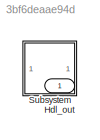
MODEL slx_3bf6deaae94d
KIND model
CONFIG AbsTol = auto
CONFIG EnableMultiTasking = off
CONFIG FixedStep = auto
CONFIG MaxStep = auto
CONFIG MinStep = auto
CONFIG RelTol = 1e-3
CONFIG SampleTimeConstraint = Unconstrained
CONFIG SolverName = VariableStepAuto
CONFIG StartTime = 0.0
CONFIG StopTime = 10.0
BLOCK [Outport] Hdl_out
  OutDataTypeStr = uint8
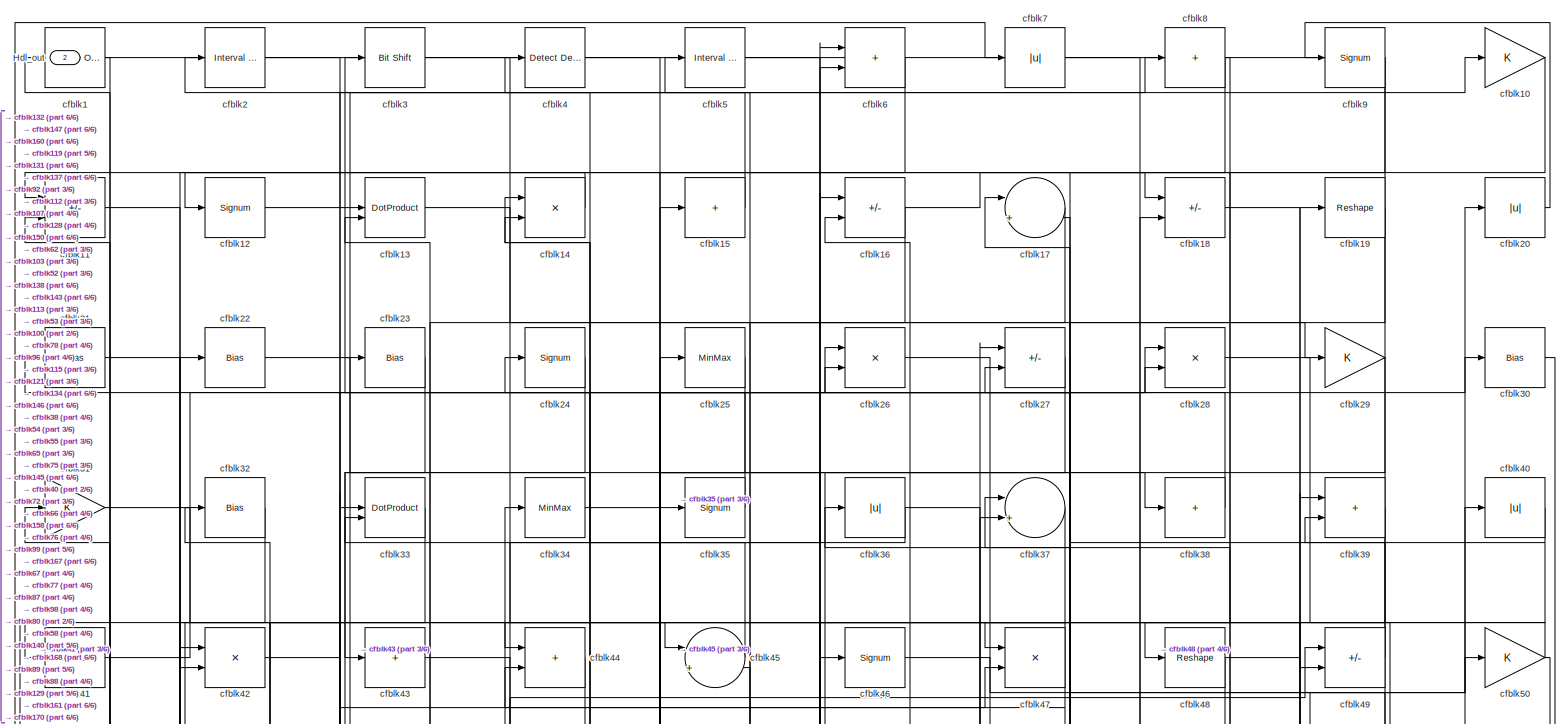
[diagram: Subsystem - part 1/6, full width, top band]
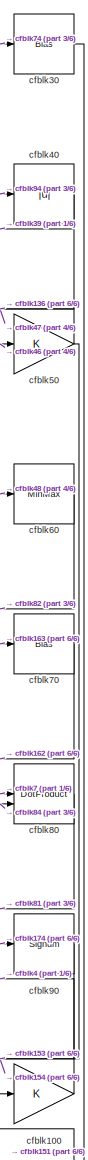
[diagram: Subsystem - part 2/6, middle right region]
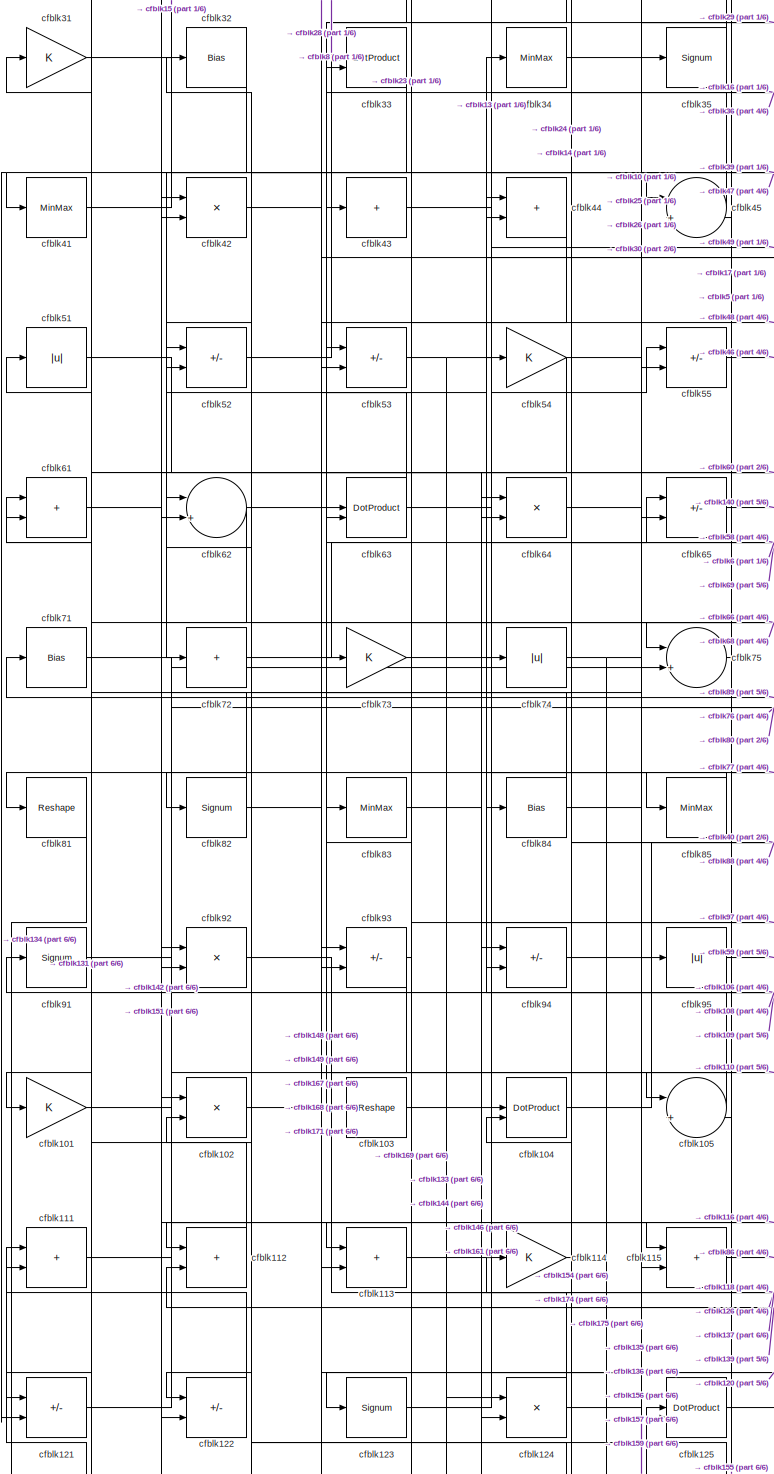
[diagram: Subsystem - part 3/6, middle left region]
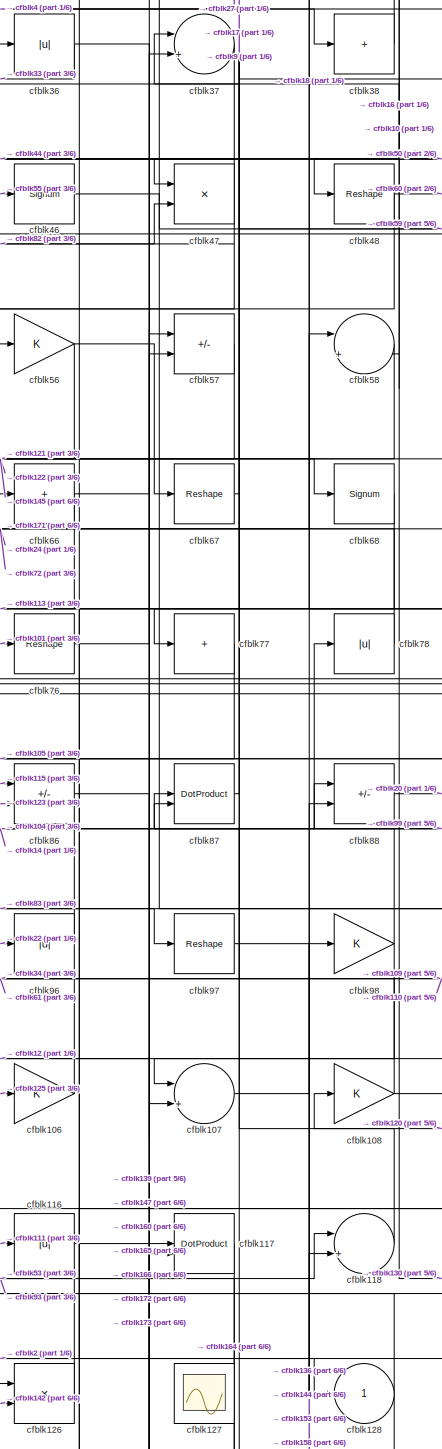
[diagram: Subsystem - part 4/6, middle right region]
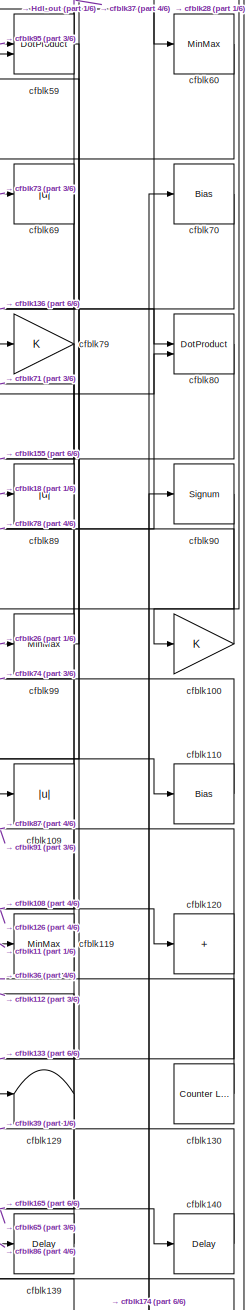
[diagram: Subsystem - part 5/6, middle right region]
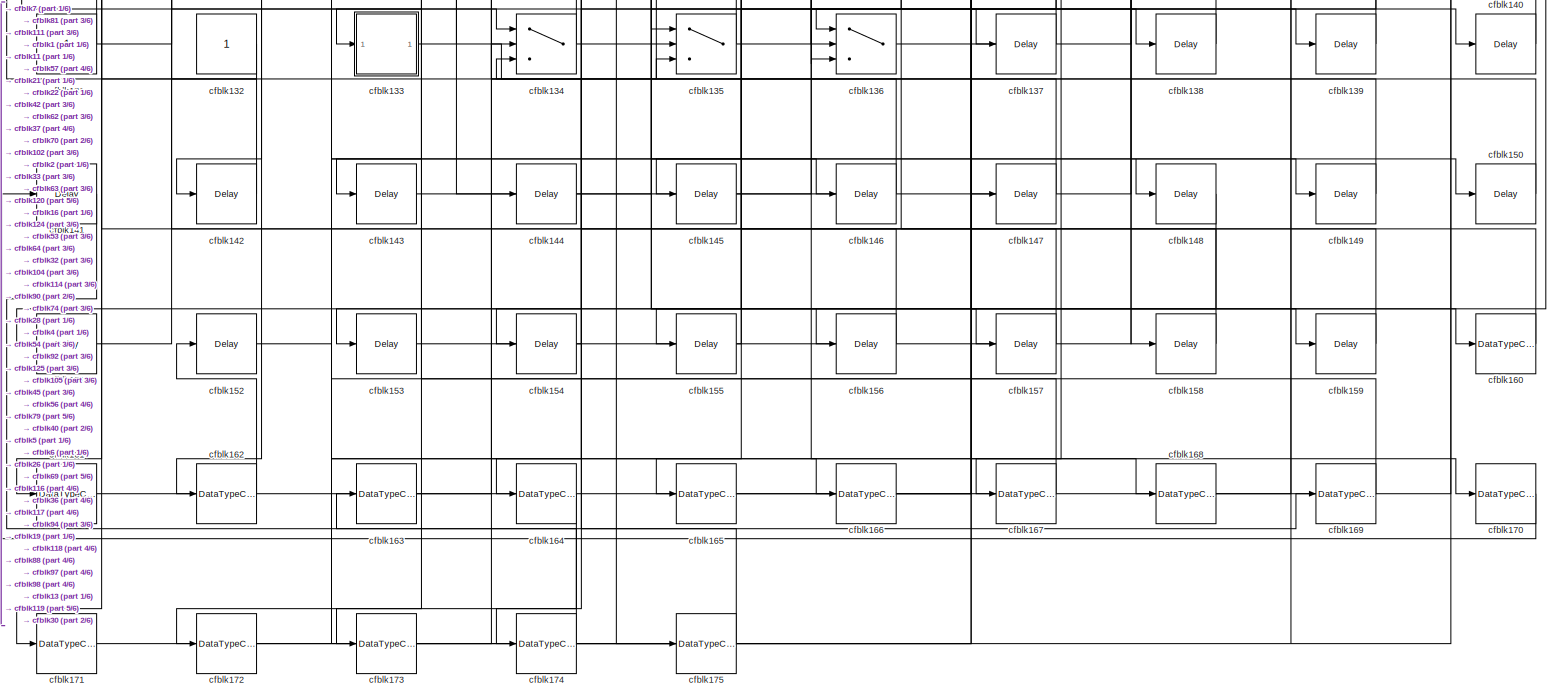
[diagram: Subsystem - part 6/6, full width, bottom band]
BLOCK [SubSystem] Subsystem
BLOCK [Outport] Subsystem/Hdl_out
  OutDataTypeStr = uint8
  Port = 2
BLOCK [Reference] Subsystem/cfblk1  REF=simulink/Logic and Bit
Operations/Bitwise
Operator
  LibrarySourceBlock = hdlsllib/Logic and Bit\nOperations/Bitwise\nOperator
  SourceBlock = simulink/Logic and Bit\nOperations/Bitwise\nOperator
  SourceType = Bitwise Operator
BLOCK [Gain] Subsystem/cfblk10
  OutDataTypeStr = uint8
BLOCK [Gain] Subsystem/cfblk100
  OutDataTypeStr = uint8
BLOCK [Gain] Subsystem/cfblk101
  OutDataTypeStr = uint8
BLOCK [Product] Subsystem/cfblk102
  Inputs = */
  OutDataTypeStr = uint8
  RndMeth = Zero
  SaturateOnIntegerOverflow = on
BLOCK [Reshape] Subsystem/cfblk103
BLOCK [DotProduct] Subsystem/cfblk104
  OutDataTypeStr = uint8
BLOCK [Sum] Subsystem/cfblk105
  Inputs = |++
  OutDataTypeStr = uint8
BLOCK [Gain] Subsystem/cfblk106
  OutDataTypeStr = uint8
BLOCK [Sum] Subsystem/cfblk107
  Inputs = |++
  OutDataTypeStr = uint8
BLOCK [Gain] Subsystem/cfblk108
  OutDataTypeStr = uint8
BLOCK [Abs] Subsystem/cfblk109
  OutDataTypeStr = uint8
  SaturateOnIntegerOverflow = off
BLOCK [Sum] Subsystem/cfblk11
  IconShape = rectangular
  Inputs = +-
  OutDataTypeStr = uint8
BLOCK [Bias] Subsystem/cfblk110
  Bias = 0.0
  SaturateOnIntegerOverflow = off
BLOCK [Sum] Subsystem/cfblk111
  IconShape = rectangular
  OutDataTypeStr = uint8
BLOCK [Sum] Subsystem/cfblk112
  IconShape = rectangular
  OutDataTypeStr = uint8
BLOCK [Sum] Subsystem/cfblk113
  IconShape = rectangular
  OutDataTypeStr = uint8
BLOCK [Gain] Subsystem/cfblk114
  OutDataTypeStr = uint8
BLOCK [Sum] Subsystem/cfblk115
  IconShape = rectangular
  OutDataTypeStr = uint8
BLOCK [Abs] Subsystem/cfblk116
  OutDataTypeStr = uint8
  SaturateOnIntegerOverflow = off
BLOCK [DotProduct] Subsystem/cfblk117
  OutDataTypeStr = uint8
BLOCK [Sum] Subsystem/cfblk118
  Inputs = |++
  OutDataTypeStr = uint8
BLOCK [MinMax] Subsystem/cfblk119
  OutDataTypeStr = uint8
BLOCK [Signum] Subsystem/cfblk12
BLOCK [Sum] Subsystem/cfblk120
  IconShape = rectangular
  Inputs = +
  OutDataTypeStr = uint8
BLOCK [Sum] Subsystem/cfblk121
  IconShape = rectangular
  Inputs = +-
  OutDataTypeStr = uint8
BLOCK [Sum] Subsystem/cfblk122
  IconShape = rectangular
  Inputs = +-
  OutDataTypeStr = uint8
BLOCK [Signum] Subsystem/cfblk123
BLOCK [Product] Subsystem/cfblk124
  Inputs = */
  OutDataTypeStr = uint8
  RndMeth = Zero
  SaturateOnIntegerOverflow = on
BLOCK [DotProduct] Subsystem/cfblk125
  OutDataTypeStr = uint8
BLOCK [Product] Subsystem/cfblk126
  Inputs = */
  OutDataTypeStr = uint8
  RndMeth = Zero
  SaturateOnIntegerOverflow = on
BLOCK [Scope] Subsystem/cfblk127
  Floating = on
  NumInputPorts = 1
  ScopeSpecificationString = Simulink.scopes.TimeScopeBlockCfg('CurrentConfiguration', extmgr.ConfigurationSet(extmgr.Configuration('Core','General UI',true,'FigureColor',[0.156862745098039 0.156862745098039 0.156862745098039]),extmgr.Configuration('Core','Source UI',true),extmgr.Configuration('Sources','WiredSimulink',true,'DataLoggingSaveFormat','StructureWithTime','DataLoggingLimitDataPoints',true,'DataLoggingDecimation','...<+2674ch>
BLOCK [Outport] Subsystem/cfblk128
  OutDataTypeStr = uint8
  VectorParamsAs1DForOutWhenUnconnected = off
BLOCK [Terminator] Subsystem/cfblk129
BLOCK [DotProduct] Subsystem/cfblk13
  OutDataTypeStr = uint8
BLOCK [Reference] Subsystem/cfblk130  REF=hdlsllib/Sources/Counter
Limited
  SourceBlock = hdlsllib/Sources/Counter\nLimited
  SourceType = Counter Limited
BLOCK [Constant] Subsystem/cfblk131
  OutDataTypeStr = uint8
  SampleTime = -1
BLOCK [Constant] Subsystem/cfblk132
  OutDataTypeStr = uint8
  SampleTime = -1
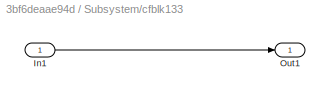
BLOCK [SubSystem] Subsystem/cfblk133
  LibrarySourceBlock = hdlsllib/Ports &\nSubsystems/Subsystem
BLOCK [Inport] Subsystem/cfblk133/In1
BLOCK [Outport] Subsystem/cfblk133/Out1
BLOCK [Switch] Subsystem/cfblk134
  InputSameDT = off
  OutDataTypeStr = uint8
  SaturateOnIntegerOverflow = off
BLOCK [Switch] Subsystem/cfblk135
  InputSameDT = off
  OutDataTypeStr = uint8
  SaturateOnIntegerOverflow = off
BLOCK [Switch] Subsystem/cfblk136
  InputSameDT = off
  OutDataTypeStr = uint8
  SaturateOnIntegerOverflow = off
BLOCK [Delay] Subsystem/cfblk137
  InputPortMap = u0
  SampleTime = 1
BLOCK [Delay] Subsystem/cfblk138
  InputPortMap = u0
  SampleTime = 1
BLOCK [Delay] Subsystem/cfblk139
  InputPortMap = u0
  SampleTime = 1
BLOCK [Product] Subsystem/cfblk14
  Inputs = */
  OutDataTypeStr = uint8
  RndMeth = Zero
  SaturateOnIntegerOverflow = on
BLOCK [Delay] Subsystem/cfblk140
  InputPortMap = u0
  SampleTime = 1
BLOCK [Delay] Subsystem/cfblk141
  InputPortMap = u0
  SampleTime = 1
BLOCK [Delay] Subsystem/cfblk142
  InputPortMap = u0
  SampleTime = 1
BLOCK [Delay] Subsystem/cfblk143
  InputPortMap = u0
  SampleTime = 1
BLOCK [Delay] Subsystem/cfblk144
  InputPortMap = u0
  SampleTime = 1
BLOCK [Delay] Subsystem/cfblk145
  InputPortMap = u0
  SampleTime = 1
BLOCK [Delay] Subsystem/cfblk146
  InputPortMap = u0
  SampleTime = 1
BLOCK [Delay] Subsystem/cfblk147
  InputPortMap = u0
  SampleTime = 1
BLOCK [Delay] Subsystem/cfblk148
  InputPortMap = u0
  SampleTime = 1
BLOCK [Delay] Subsystem/cfblk149
  InputPortMap = u0
  SampleTime = 1
BLOCK [Sum] Subsystem/cfblk15
  IconShape = rectangular
  Inputs = +
  OutDataTypeStr = uint8
BLOCK [Delay] Subsystem/cfblk150
  InputPortMap = u0
  SampleTime = 1
BLOCK [Delay] Subsystem/cfblk151
  InputPortMap = u0
  SampleTime = 1
BLOCK [Delay] Subsystem/cfblk152
  InputPortMap = u0
  SampleTime = 1
BLOCK [Delay] Subsystem/cfblk153
  InputPortMap = u0
  SampleTime = 1
BLOCK [Delay] Subsystem/cfblk154
  InputPortMap = u0
  SampleTime = 1
BLOCK [Delay] Subsystem/cfblk155
  InputPortMap = u0
  SampleTime = 1
BLOCK [Delay] Subsystem/cfblk156
  InputPortMap = u0
  SampleTime = 1
BLOCK [Delay] Subsystem/cfblk157
  InputPortMap = u0
  SampleTime = 1
BLOCK [Delay] Subsystem/cfblk158
  InputPortMap = u0
  SampleTime = 1
BLOCK [Delay] Subsystem/cfblk159
  InputPortMap = u0
  SampleTime = 1
BLOCK [Sum] Subsystem/cfblk16
  IconShape = rectangular
  Inputs = +-
  OutDataTypeStr = uint8
BLOCK [DataTypeConversion] Subsystem/cfblk160
  OutDataTypeStr = uint8
  RndMeth = Floor
  SaturateOnIntegerOverflow = off
BLOCK [DataTypeConversion] Subsystem/cfblk161
  OutDataTypeStr = uint8
  RndMeth = Floor
  SaturateOnIntegerOverflow = off
BLOCK [DataTypeConversion] Subsystem/cfblk162
  OutDataTypeStr = uint8
  RndMeth = Floor
  SaturateOnIntegerOverflow = off
BLOCK [DataTypeConversion] Subsystem/cfblk163
  OutDataTypeStr = uint8
  RndMeth = Floor
  SaturateOnIntegerOverflow = off
BLOCK [DataTypeConversion] Subsystem/cfblk164
  OutDataTypeStr = uint8
  RndMeth = Floor
  SaturateOnIntegerOverflow = off
BLOCK [DataTypeConversion] Subsystem/cfblk165
  OutDataTypeStr = uint8
  RndMeth = Floor
  SaturateOnIntegerOverflow = off
BLOCK [DataTypeConversion] Subsystem/cfblk166
  OutDataTypeStr = uint8
  RndMeth = Floor
  SaturateOnIntegerOverflow = off
BLOCK [DataTypeConversion] Subsystem/cfblk167
  OutDataTypeStr = uint8
  RndMeth = Floor
  SaturateOnIntegerOverflow = off
BLOCK [DataTypeConversion] Subsystem/cfblk168
  OutDataTypeStr = uint8
  RndMeth = Floor
  SaturateOnIntegerOverflow = off
BLOCK [DataTypeConversion] Subsystem/cfblk169
  OutDataTypeStr = uint8
  RndMeth = Floor
  SaturateOnIntegerOverflow = off
BLOCK [Sum] Subsystem/cfblk17
  Inputs = |++
  OutDataTypeStr = uint8
BLOCK [DataTypeConversion] Subsystem/cfblk170
  OutDataTypeStr = uint8
  RndMeth = Floor
  SaturateOnIntegerOverflow = off
BLOCK [DataTypeConversion] Subsystem/cfblk171
  OutDataTypeStr = uint8
  RndMeth = Floor
  SaturateOnIntegerOverflow = off
BLOCK [DataTypeConversion] Subsystem/cfblk172
  OutDataTypeStr = uint8
  RndMeth = Floor
  SaturateOnIntegerOverflow = off
BLOCK [DataTypeConversion] Subsystem/cfblk173
  OutDataTypeStr = uint8
  RndMeth = Floor
  SaturateOnIntegerOverflow = off
BLOCK [DataTypeConversion] Subsystem/cfblk174
  OutDataTypeStr = uint8
  RndMeth = Floor
  SaturateOnIntegerOverflow = off
BLOCK [DataTypeConversion] Subsystem/cfblk175
  OutDataTypeStr = uint8
  RndMeth = Floor
  SaturateOnIntegerOverflow = off
BLOCK [Sum] Subsystem/cfblk18
  IconShape = rectangular
  Inputs = +-
  OutDataTypeStr = uint8
BLOCK [Reshape] Subsystem/cfblk19
BLOCK [Reference] Subsystem/cfblk2  REF=hdlsllib/Logic and Bit
Operations/Interval Test
  SourceBlock = hdlsllib/Logic and Bit\nOperations/Interval Test
  SourceType = Interval Test
BLOCK [Abs] Subsystem/cfblk20
  OutDataTypeStr = uint8
  SaturateOnIntegerOverflow = off
BLOCK [Bias] Subsystem/cfblk21
  Bias = 0.0
  SaturateOnIntegerOverflow = off
BLOCK [Bias] Subsystem/cfblk22
  Bias = 0.0
  SaturateOnIntegerOverflow = off
BLOCK [Bias] Subsystem/cfblk23
  Bias = 0.0
  SaturateOnIntegerOverflow = off
BLOCK [Signum] Subsystem/cfblk24
BLOCK [MinMax] Subsystem/cfblk25
  OutDataTypeStr = uint8
BLOCK [Product] Subsystem/cfblk26
  Inputs = */
  OutDataTypeStr = uint8
  RndMeth = Zero
  SaturateOnIntegerOverflow = on
BLOCK [Sum] Subsystem/cfblk27
  IconShape = rectangular
  Inputs = +-
  OutDataTypeStr = uint8
BLOCK [Product] Subsystem/cfblk28
  Inputs = */
  OutDataTypeStr = uint8
  RndMeth = Zero
  SaturateOnIntegerOverflow = on
BLOCK [Gain] Subsystem/cfblk29
  OutDataTypeStr = uint8
BLOCK [Reference] Subsystem/cfblk3  REF=hdlsllib/Logic and Bit
Operations/Bit Shift
  SourceBlock = hdlsllib/Logic and Bit\nOperations/Bit Shift
  SourceType = Bit Shift
BLOCK [Bias] Subsystem/cfblk30
  Bias = 0.0
  SaturateOnIntegerOverflow = off
BLOCK [Gain] Subsystem/cfblk31
  OutDataTypeStr = uint8
BLOCK [Bias] Subsystem/cfblk32
  Bias = 0.0
  SaturateOnIntegerOverflow = off
BLOCK [DotProduct] Subsystem/cfblk33
  OutDataTypeStr = uint8
BLOCK [MinMax] Subsystem/cfblk34
  OutDataTypeStr = uint8
BLOCK [Signum] Subsystem/cfblk35
BLOCK [Abs] Subsystem/cfblk36
  OutDataTypeStr = uint8
  SaturateOnIntegerOverflow = off
BLOCK [Sum] Subsystem/cfblk37
  Inputs = |++
  OutDataTypeStr = uint8
BLOCK [Sum] Subsystem/cfblk38
  IconShape = rectangular
  Inputs = +
  OutDataTypeStr = uint8
BLOCK [Sum] Subsystem/cfblk39
  IconShape = rectangular
  OutDataTypeStr = uint8
BLOCK [Reference] Subsystem/cfblk4  REF=simulink/Logic and Bit
Operations/Detect
Decrease
  LibrarySourceBlock = hdlsllib/Logic and Bit\nOperations/Detect\nDecrease
  SourceBlock = simulink/Logic and Bit\nOperations/Detect\nDecrease
  SourceType = Detect Decrease
BLOCK [Abs] Subsystem/cfblk40
  OutDataTypeStr = uint8
  SaturateOnIntegerOverflow = off
BLOCK [MinMax] Subsystem/cfblk41
  OutDataTypeStr = uint8
BLOCK [Product] Subsystem/cfblk42
  Inputs = */
  OutDataTypeStr = uint8
  RndMeth = Zero
  SaturateOnIntegerOverflow = on
BLOCK [Sum] Subsystem/cfblk43
  IconShape = rectangular
  Inputs = +
  OutDataTypeStr = uint8
BLOCK [Sum] Subsystem/cfblk44
  IconShape = rectangular
  OutDataTypeStr = uint8
BLOCK [Sum] Subsystem/cfblk45
  Inputs = |++
  OutDataTypeStr = uint8
BLOCK [Signum] Subsystem/cfblk46
BLOCK [Product] Subsystem/cfblk47
  Inputs = */
  OutDataTypeStr = uint8
  RndMeth = Zero
  SaturateOnIntegerOverflow = on
BLOCK [Reshape] Subsystem/cfblk48
BLOCK [Sum] Subsystem/cfblk49
  IconShape = rectangular
  Inputs = +-
  OutDataTypeStr = uint8
BLOCK [Reference] Subsystem/cfblk5  REF=hdlsllib/Logic and Bit
Operations/Interval Test
  SourceBlock = hdlsllib/Logic and Bit\nOperations/Interval Test
  SourceType = Interval Test
BLOCK [Gain] Subsystem/cfblk50
  OutDataTypeStr = uint8
BLOCK [Abs] Subsystem/cfblk51
  OutDataTypeStr = uint8
  SaturateOnIntegerOverflow = off
BLOCK [Sum] Subsystem/cfblk52
  IconShape = rectangular
  Inputs = +-
  OutDataTypeStr = uint8
BLOCK [Sum] Subsystem/cfblk53
  IconShape = rectangular
  Inputs = +-
  OutDataTypeStr = uint8
BLOCK [Gain] Subsystem/cfblk54
  OutDataTypeStr = uint8
BLOCK [Sum] Subsystem/cfblk55
  IconShape = rectangular
  Inputs = +-
  OutDataTypeStr = uint8
BLOCK [Gain] Subsystem/cfblk56
  OutDataTypeStr = uint8
BLOCK [Sum] Subsystem/cfblk57
  IconShape = rectangular
  Inputs = +-
  OutDataTypeStr = uint8
BLOCK [Sum] Subsystem/cfblk58
  Inputs = |++
  OutDataTypeStr = uint8
BLOCK [DotProduct] Subsystem/cfblk59
  OutDataTypeStr = uint8
BLOCK [Sum] Subsystem/cfblk6
  IconShape = rectangular
  OutDataTypeStr = uint8
BLOCK [MinMax] Subsystem/cfblk60
  OutDataTypeStr = uint8
BLOCK [Sum] Subsystem/cfblk61
  IconShape = rectangular
  OutDataTypeStr = uint8
BLOCK [Sum] Subsystem/cfblk62
  Inputs = |++
  OutDataTypeStr = uint8
BLOCK [DotProduct] Subsystem/cfblk63
  OutDataTypeStr = uint8
BLOCK [Product] Subsystem/cfblk64
  Inputs = */
  OutDataTypeStr = uint8
  RndMeth = Zero
  SaturateOnIntegerOverflow = on
BLOCK [Sum] Subsystem/cfblk65
  IconShape = rectangular
  Inputs = +-
  OutDataTypeStr = uint8
BLOCK [Sum] Subsystem/cfblk66
  IconShape = rectangular
  Inputs = +
  OutDataTypeStr = uint8
BLOCK [Reshape] Subsystem/cfblk67
BLOCK [Signum] Subsystem/cfblk68
BLOCK [Abs] Subsystem/cfblk69
  OutDataTypeStr = uint8
  SaturateOnIntegerOverflow = off
BLOCK [Abs] Subsystem/cfblk7
  OutDataTypeStr = uint8
  SaturateOnIntegerOverflow = off
BLOCK [Bias] Subsystem/cfblk70
  Bias = 0.0
  SaturateOnIntegerOverflow = off
BLOCK [Bias] Subsystem/cfblk71
  Bias = 0.0
  SaturateOnIntegerOverflow = off
BLOCK [Sum] Subsystem/cfblk72
  IconShape = rectangular
  Inputs = +
  OutDataTypeStr = uint8
BLOCK [Gain] Subsystem/cfblk73
  OutDataTypeStr = uint8
BLOCK [Abs] Subsystem/cfblk74
  OutDataTypeStr = uint8
  SaturateOnIntegerOverflow = off
BLOCK [Sum] Subsystem/cfblk75
  Inputs = |++
  OutDataTypeStr = uint8
BLOCK [Reshape] Subsystem/cfblk76
BLOCK [Sum] Subsystem/cfblk77
  IconShape = rectangular
  Inputs = +
  OutDataTypeStr = uint8
BLOCK [Abs] Subsystem/cfblk78
  OutDataTypeStr = uint8
  SaturateOnIntegerOverflow = off
BLOCK [Gain] Subsystem/cfblk79
  OutDataTypeStr = uint8
BLOCK [Sum] Subsystem/cfblk8
  IconShape = rectangular
  Inputs = +
  OutDataTypeStr = uint8
BLOCK [DotProduct] Subsystem/cfblk80
  OutDataTypeStr = uint8
BLOCK [Reshape] Subsystem/cfblk81
BLOCK [Signum] Subsystem/cfblk82
BLOCK [MinMax] Subsystem/cfblk83
  OutDataTypeStr = uint8
BLOCK [Bias] Subsystem/cfblk84
  Bias = 0.0
  SaturateOnIntegerOverflow = off
BLOCK [MinMax] Subsystem/cfblk85
  OutDataTypeStr = uint8
BLOCK [Sum] Subsystem/cfblk86
  IconShape = rectangular
  Inputs = +-
  OutDataTypeStr = uint8
BLOCK [DotProduct] Subsystem/cfblk87
  OutDataTypeStr = uint8
BLOCK [Sum] Subsystem/cfblk88
  IconShape = rectangular
  Inputs = +-
  OutDataTypeStr = uint8
BLOCK [Abs] Subsystem/cfblk89
  OutDataTypeStr = uint8
  SaturateOnIntegerOverflow = off
BLOCK [Signum] Subsystem/cfblk9
BLOCK [Signum] Subsystem/cfblk90
BLOCK [Signum] Subsystem/cfblk91
BLOCK [Product] Subsystem/cfblk92
  Inputs = */
  OutDataTypeStr = uint8
  RndMeth = Zero
  SaturateOnIntegerOverflow = on
BLOCK [Sum] Subsystem/cfblk93
  IconShape = rectangular
  Inputs = +-
  OutDataTypeStr = uint8
BLOCK [Sum] Subsystem/cfblk94
  IconShape = rectangular
  Inputs = +-
  OutDataTypeStr = uint8
BLOCK [Abs] Subsystem/cfblk95
  OutDataTypeStr = uint8
  SaturateOnIntegerOverflow = off
BLOCK [Abs] Subsystem/cfblk96
  OutDataTypeStr = uint8
  SaturateOnIntegerOverflow = off
BLOCK [Reshape] Subsystem/cfblk97
BLOCK [Gain] Subsystem/cfblk98
  OutDataTypeStr = uint8
BLOCK [MinMax] Subsystem/cfblk99
  OutDataTypeStr = uint8
LINE Subsystem/cfblk100:1 -> Subsystem/cfblk4:1
LINE Subsystem/cfblk101:1 -> Subsystem/cfblk76:1
NET Subsystem/cfblk102:1 -> Subsystem/cfblk148:1, Subsystem/cfblk149:1, Subsystem/cfblk168:1, Subsystem/cfblk54:1
LINE Subsystem/cfblk103:1 -> Subsystem/cfblk65:1
LINE Subsystem/cfblk104:1 -> Subsystem/cfblk88:1
LINE Subsystem/cfblk105:1 -> Subsystem/cfblk94:2
LINE Subsystem/cfblk106:1 -> Subsystem/cfblk34:1
LINE Subsystem/cfblk107:1 -> Subsystem/cfblk18:2
NET Subsystem/cfblk108:1 -> Subsystem/cfblk120:1, Subsystem/cfblk61:1
NET Subsystem/cfblk109:1 -> Subsystem/cfblk126:1, Subsystem/cfblk74:1
NET Subsystem/cfblk10:1 -> Subsystem/cfblk55:2, Subsystem/cfblk58:2
LINE Subsystem/cfblk110:1 -> Subsystem/cfblk87:2
LINE Subsystem/cfblk111:1 -> Subsystem/cfblk116:1
LINE Subsystem/cfblk112:1 -> Subsystem/cfblk51:1
LINE Subsystem/cfblk113:1 -> Subsystem/cfblk49:1
LINE Subsystem/cfblk114:1 -> Subsystem/cfblk174:1
LINE Subsystem/cfblk115:1 -> Subsystem/cfblk86:1
LINE Subsystem/cfblk116:1 -> Subsystem/cfblk147:1
LINE Subsystem/cfblk117:1 -> Subsystem/cfblk164:1
LINE Subsystem/cfblk118:1 -> Subsystem/cfblk108:1
NET Subsystem/cfblk119:1 -> Subsystem/Hdl_out:1, Subsystem/cfblk165:1
NET Subsystem/cfblk11:1 -> Subsystem/cfblk119:1, Subsystem/cfblk49:2
NET Subsystem/cfblk120:1 -> Subsystem/cfblk133:1, Subsystem/cfblk87:1, Subsystem/cfblk91:1
NET Subsystem/cfblk121:1 -> Subsystem/cfblk25:1, Subsystem/cfblk61:2
LINE Subsystem/cfblk122:1 -> Subsystem/cfblk111:1
LINE Subsystem/cfblk123:1 -> Subsystem/cfblk55:1
NET Subsystem/cfblk124:1 -> Subsystem/cfblk136:3, Subsystem/cfblk156:1, Subsystem/cfblk157:1, Subsystem/cfblk83:1
LINE Subsystem/cfblk125:1 -> Subsystem/cfblk106:1
LINE Subsystem/cfblk126:1 -> Subsystem/cfblk53:1
NET Subsystem/cfblk12:1 -> Subsystem/cfblk107:2, Subsystem/cfblk10:1, Subsystem/cfblk3:1
LINE Subsystem/cfblk130:1 -> Subsystem/cfblk36:1
NET Subsystem/cfblk131:1 -> Subsystem/cfblk111:2, Subsystem/cfblk22:1, Subsystem/cfblk62:2
LINE Subsystem/cfblk132:1 -> Subsystem/cfblk7:1
LINE Subsystem/cfblk133/In1:1 -> Subsystem/cfblk133/Out1:1
NET Subsystem/cfblk133:1 -> Subsystem/cfblk124:1, Subsystem/cfblk125:1
NET Subsystem/cfblk134:1 -> Subsystem/cfblk28:2, Subsystem/cfblk32:1
NET Subsystem/cfblk135:1 -> Subsystem/cfblk102:2, Subsystem/cfblk138:1
LINE Subsystem/cfblk136:1 -> Subsystem/cfblk98:1
LINE Subsystem/cfblk137:1 -> Subsystem/cfblk94:1
LINE Subsystem/cfblk138:1 -> Subsystem/cfblk13:2
LINE Subsystem/cfblk139:1 -> Subsystem/cfblk112:2
LINE Subsystem/cfblk13:1 -> Subsystem/cfblk45:1
LINE Subsystem/cfblk140:1 -> Subsystem/cfblk39:1
LINE Subsystem/cfblk141:1 -> Subsystem/cfblk169:1
LINE Subsystem/cfblk142:1 -> Subsystem/cfblk102:1
LINE Subsystem/cfblk143:1 -> Subsystem/cfblk135:2
LINE Subsystem/cfblk144:1 -> Subsystem/cfblk88:2
LINE Subsystem/cfblk145:1 -> Subsystem/cfblk6:2
LINE Subsystem/cfblk146:1 -> Subsystem/cfblk64:1
LINE Subsystem/cfblk147:1 -> Subsystem/cfblk11:2
LINE Subsystem/cfblk148:1 -> Subsystem/cfblk173:1
LINE Subsystem/cfblk149:1 -> Subsystem/cfblk105:2
LINE Subsystem/cfblk14:1 -> Subsystem/cfblk11:1
LINE Subsystem/cfblk150:1 -> Subsystem/cfblk134:2
LINE Subsystem/cfblk151:1 -> Subsystem/cfblk42:1
LINE Subsystem/cfblk152:1 -> Subsystem/cfblk166:1
LINE Subsystem/cfblk153:1 -> Subsystem/cfblk118:2
LINE Subsystem/cfblk154:1 -> Subsystem/cfblk104:2
LINE Subsystem/cfblk155:1 -> Subsystem/cfblk45:2
LINE Subsystem/cfblk156:1 -> Subsystem/cfblk92:1
LINE Subsystem/cfblk157:1 -> Subsystem/cfblk134:3
LINE Subsystem/cfblk158:1 -> Subsystem/cfblk26:2
LINE Subsystem/cfblk159:1 -> Subsystem/cfblk135:3
LINE Subsystem/cfblk15:1 -> Subsystem/cfblk2:1
LINE Subsystem/cfblk160:1 -> Subsystem/cfblk1:1
LINE Subsystem/cfblk161:1 -> Subsystem/cfblk104:1
LINE Subsystem/cfblk162:1 -> Subsystem/cfblk152:1
LINE Subsystem/cfblk163:1 -> Subsystem/cfblk70:1
LINE Subsystem/cfblk164:1 -> Subsystem/cfblk172:1
LINE Subsystem/cfblk165:1 -> Subsystem/cfblk117:1
LINE Subsystem/cfblk166:1 -> Subsystem/cfblk117:2
LINE Subsystem/cfblk167:1 -> Subsystem/cfblk63:1
LINE Subsystem/cfblk168:1 -> Subsystem/cfblk19:1
LINE Subsystem/cfblk169:1 -> Subsystem/cfblk63:2
NET Subsystem/cfblk16:1 -> Subsystem/cfblk143:1, Subsystem/cfblk18:1
LINE Subsystem/cfblk170:1 -> Subsystem/cfblk141:1
NET Subsystem/cfblk171:1 -> Subsystem/cfblk124:2, Subsystem/cfblk33:1
LINE Subsystem/cfblk172:1 -> Subsystem/cfblk57:1
LINE Subsystem/cfblk173:1 -> Subsystem/cfblk57:2
NET Subsystem/cfblk174:1 -> Subsystem/cfblk163:1, Subsystem/cfblk79:1, Subsystem/cfblk90:1
LINE Subsystem/cfblk175:1 -> Subsystem/cfblk114:1
LINE Subsystem/cfblk17:1 -> Subsystem/cfblk75:1
LINE Subsystem/cfblk18:1 -> Subsystem/cfblk89:1
LINE Subsystem/cfblk19:1 -> Subsystem/cfblk167:1
LINE Subsystem/cfblk1:1 -> Subsystem/cfblk161:1
LINE Subsystem/cfblk20:1 -> Subsystem/cfblk9:1
LINE Subsystem/cfblk21:1 -> Subsystem/cfblk137:1
NET Subsystem/cfblk22:1 -> Subsystem/cfblk23:1, Subsystem/cfblk96:1
LINE Subsystem/cfblk23:1 -> Subsystem/cfblk103:1
LINE Subsystem/cfblk24:1 -> Subsystem/cfblk43:1
LINE Subsystem/cfblk25:1 -> Subsystem/cfblk115:2
LINE Subsystem/cfblk26:1 -> Subsystem/cfblk99:1
LINE Subsystem/cfblk27:1 -> Subsystem/cfblk66:1
LINE Subsystem/cfblk28:1 -> Subsystem/cfblk129:1
LINE Subsystem/cfblk29:1 -> Subsystem/cfblk65:2
NET Subsystem/cfblk2:1 -> Subsystem/cfblk128:1, Subsystem/cfblk150:1
LINE Subsystem/cfblk30:1 -> Subsystem/cfblk151:1
LINE Subsystem/cfblk31:1 -> Subsystem/cfblk53:2
NET Subsystem/cfblk32:1 -> Subsystem/cfblk121:2, Subsystem/cfblk41:1, Subsystem/cfblk42:2
LINE Subsystem/cfblk33:1 -> Subsystem/cfblk72:1
LINE Subsystem/cfblk34:1 -> Subsystem/cfblk95:1
LINE Subsystem/cfblk35:1 -> Subsystem/cfblk13:1
NET Subsystem/cfblk36:1 -> Subsystem/cfblk160:1, Subsystem/cfblk33:2
NET Subsystem/cfblk37:1 -> Subsystem/cfblk126:2, Subsystem/cfblk142:1
LINE Subsystem/cfblk38:1 -> Subsystem/cfblk16:2
NET Subsystem/cfblk39:1 -> Subsystem/cfblk112:1, Subsystem/cfblk52:1
LINE Subsystem/cfblk3:1 -> Subsystem/cfblk29:1
NET Subsystem/cfblk40:1 -> Subsystem/cfblk136:2, Subsystem/cfblk39:2
LINE Subsystem/cfblk41:1 -> Subsystem/cfblk15:1
LINE Subsystem/cfblk42:1 -> Subsystem/cfblk93:1
LINE Subsystem/cfblk43:1 -> Subsystem/cfblk85:1
LINE Subsystem/cfblk44:1 -> Subsystem/cfblk113:2
LINE Subsystem/cfblk45:1 -> Subsystem/cfblk14:1
LINE Subsystem/cfblk46:1 -> Subsystem/cfblk50:1
NET Subsystem/cfblk47:1 -> Subsystem/cfblk44:1, Subsystem/cfblk44:2, Subsystem/cfblk56:1
NET Subsystem/cfblk48:1 -> Subsystem/cfblk123:1, Subsystem/cfblk60:1, Subsystem/cfblk86:2
LINE Subsystem/cfblk49:1 -> Subsystem/cfblk21:1
NET Subsystem/cfblk4:1 -> Subsystem/cfblk146:1, Subsystem/cfblk38:1
NET Subsystem/cfblk50:1 -> Subsystem/cfblk100:1, Subsystem/cfblk47:1
LINE Subsystem/cfblk51:1 -> Subsystem/cfblk64:2
LINE Subsystem/cfblk52:1 -> Subsystem/cfblk8:1
NET Subsystem/cfblk53:1 -> Subsystem/cfblk144:1, Subsystem/cfblk16:1
NET Subsystem/cfblk54:1 -> Subsystem/cfblk159:1, Subsystem/cfblk26:1, Subsystem/cfblk93:2
LINE Subsystem/cfblk55:1 -> Subsystem/cfblk46:1
NET Subsystem/cfblk56:1 -> Subsystem/cfblk145:1, Subsystem/cfblk67:1
LINE Subsystem/cfblk57:1 -> Subsystem/cfblk171:1
NET Subsystem/cfblk58:1 -> Subsystem/cfblk121:1, Subsystem/cfblk122:1
NET Subsystem/cfblk59:1 -> Subsystem/cfblk109:1, Subsystem/cfblk37:1
LINE Subsystem/cfblk5:1 -> Subsystem/cfblk170:1
LINE Subsystem/cfblk60:1 -> Subsystem/cfblk82:1
LINE Subsystem/cfblk61:1 -> Subsystem/cfblk68:1
NET Subsystem/cfblk62:1 -> Subsystem/cfblk122:2, Subsystem/cfblk28:1
NET Subsystem/cfblk63:1 -> Subsystem/cfblk115:1, Subsystem/cfblk52:2
LINE Subsystem/cfblk64:1 -> Subsystem/cfblk35:1
LINE Subsystem/cfblk65:1 -> Subsystem/cfblk140:1
NET Subsystem/cfblk66:1 -> Subsystem/cfblk113:1, Subsystem/cfblk37:2
LINE Subsystem/cfblk67:1 -> Subsystem/cfblk27:2
LINE Subsystem/cfblk68:1 -> Subsystem/cfblk101:1
LINE Subsystem/cfblk69:1 -> Subsystem/cfblk136:1
LINE Subsystem/cfblk6:1 -> Subsystem/cfblk92:2
LINE Subsystem/cfblk70:1 -> Subsystem/cfblk162:1
LINE Subsystem/cfblk71:1 -> Subsystem/cfblk110:1
NET Subsystem/cfblk72:1 -> Subsystem/cfblk58:1, Subsystem/cfblk6:1
NET Subsystem/cfblk73:1 -> Subsystem/cfblk125:2, Subsystem/cfblk69:1
NET Subsystem/cfblk74:1 -> Subsystem/cfblk175:1, Subsystem/cfblk30:1
LINE Subsystem/cfblk75:1 -> Subsystem/cfblk5:1
LINE Subsystem/cfblk76:1 -> Subsystem/cfblk27:1
LINE Subsystem/cfblk77:1 -> Subsystem/cfblk105:1
LINE Subsystem/cfblk78:1 -> Subsystem/cfblk24:1
LINE Subsystem/cfblk79:1 -> Subsystem/cfblk155:1
LINE Subsystem/cfblk7:1 -> Subsystem/cfblk80:1
LINE Subsystem/cfblk80:1 -> Subsystem/cfblk81:1
LINE Subsystem/cfblk81:1 -> Subsystem/cfblk134:1
NET Subsystem/cfblk82:1 -> Subsystem/cfblk31:1, Subsystem/cfblk47:2
LINE Subsystem/cfblk83:1 -> Subsystem/cfblk97:1
NET Subsystem/cfblk84:1 -> Subsystem/cfblk62:1, Subsystem/cfblk80:2
LINE Subsystem/cfblk85:1 -> Subsystem/cfblk84:1
LINE Subsystem/cfblk86:1 -> Subsystem/cfblk139:1
LINE Subsystem/cfblk87:1 -> Subsystem/cfblk17:1
LINE Subsystem/cfblk88:1 -> Subsystem/cfblk20:1
LINE Subsystem/cfblk89:1 -> Subsystem/cfblk71:1
NET Subsystem/cfblk8:1 -> Subsystem/cfblk12:1, Subsystem/cfblk48:1
NET Subsystem/cfblk90:1 -> Subsystem/cfblk153:1, Subsystem/cfblk154:1
LINE Subsystem/cfblk91:1 -> Subsystem/cfblk75:2
LINE Subsystem/cfblk92:1 -> Subsystem/cfblk135:1
NET Subsystem/cfblk93:1 -> Subsystem/cfblk118:1, Subsystem/cfblk73:1
LINE Subsystem/cfblk94:1 -> Subsystem/cfblk40:1
LINE Subsystem/cfblk95:1 -> Subsystem/cfblk59:1
LINE Subsystem/cfblk96:1 -> Subsystem/cfblk14:2
LINE Subsystem/cfblk97:1 -> Subsystem/cfblk158:1
NET Subsystem/cfblk98:1 -> Subsystem/cfblk107:1, Subsystem/cfblk17:2
NET Subsystem/cfblk99:1 -> Subsystem/cfblk59:2, Subsystem/cfblk78:1
LINE Subsystem/cfblk9:1 -> Subsystem/cfblk77:1
note: NET lines group one-source signal fan-out (src -> all destinations, sorted); 1:1 wires keep LINE
